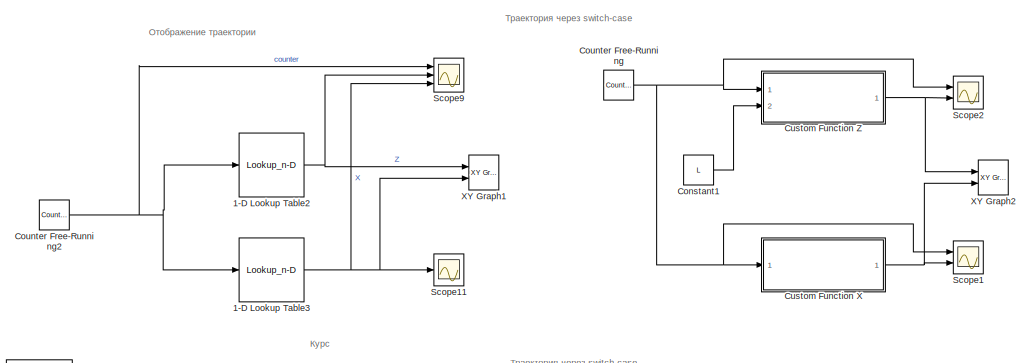
[diagram: root canvas - part 1/3, top right region]
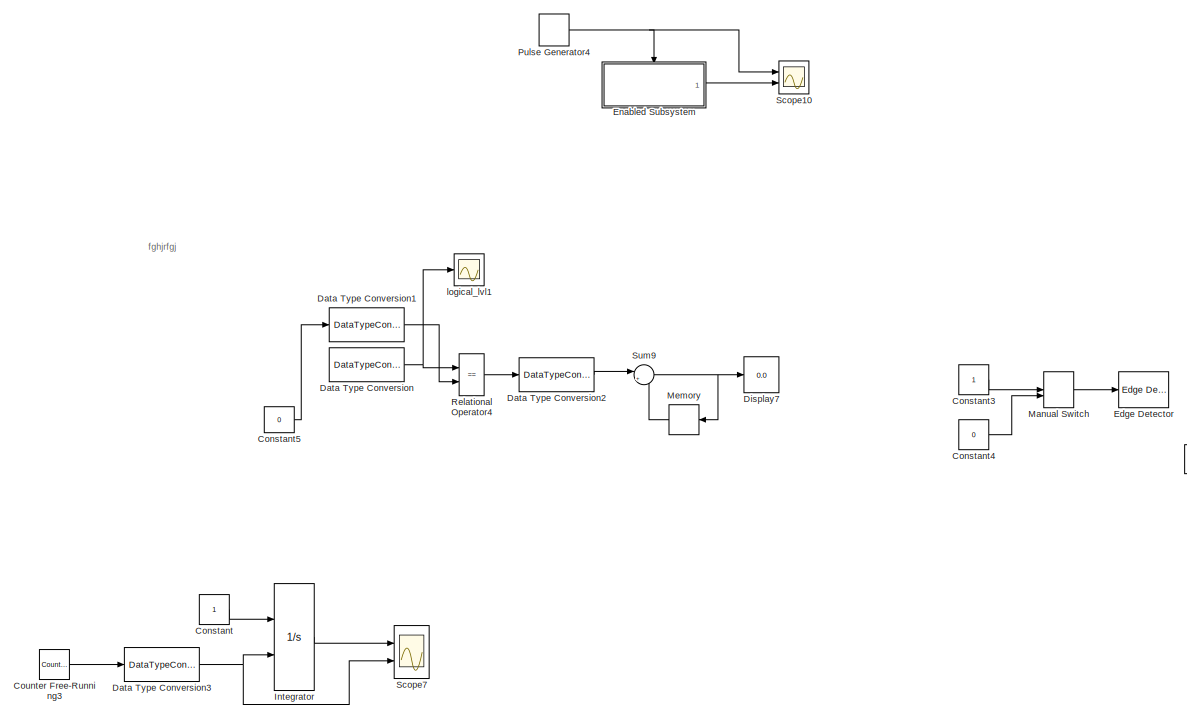
[diagram: root canvas - part 2/3, middle left region]
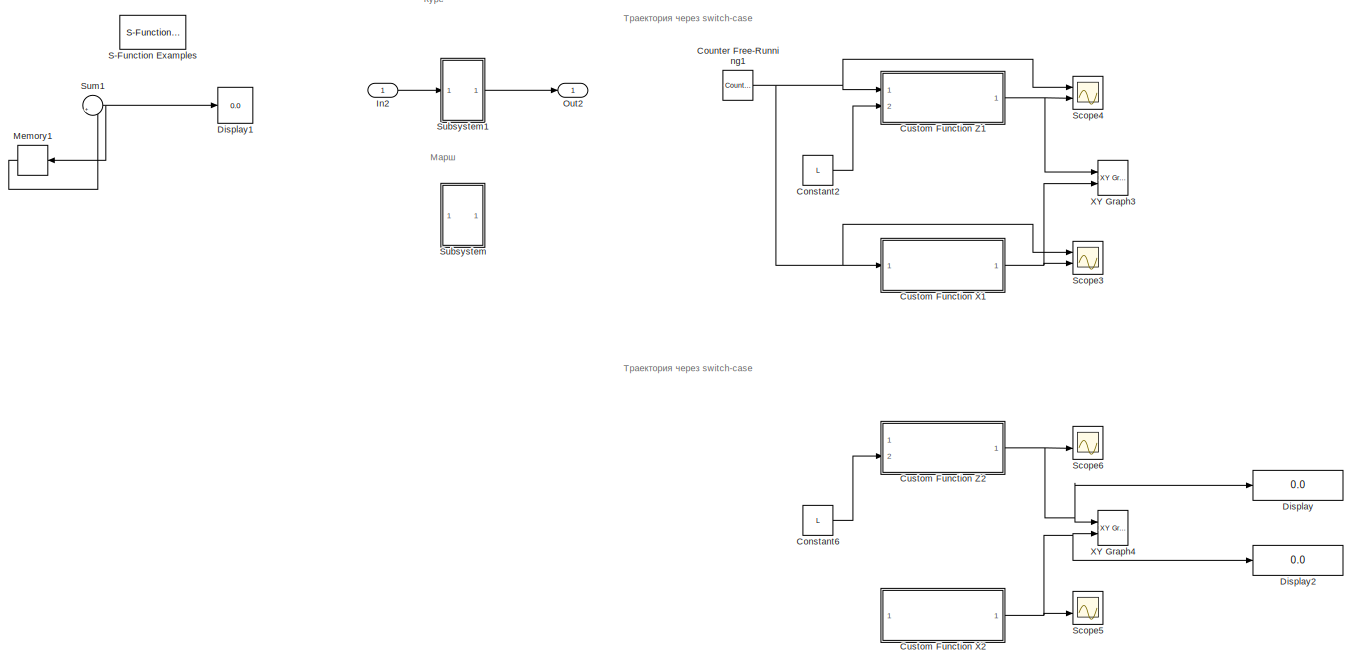
[diagram: root canvas - part 3/3, bottom right region]
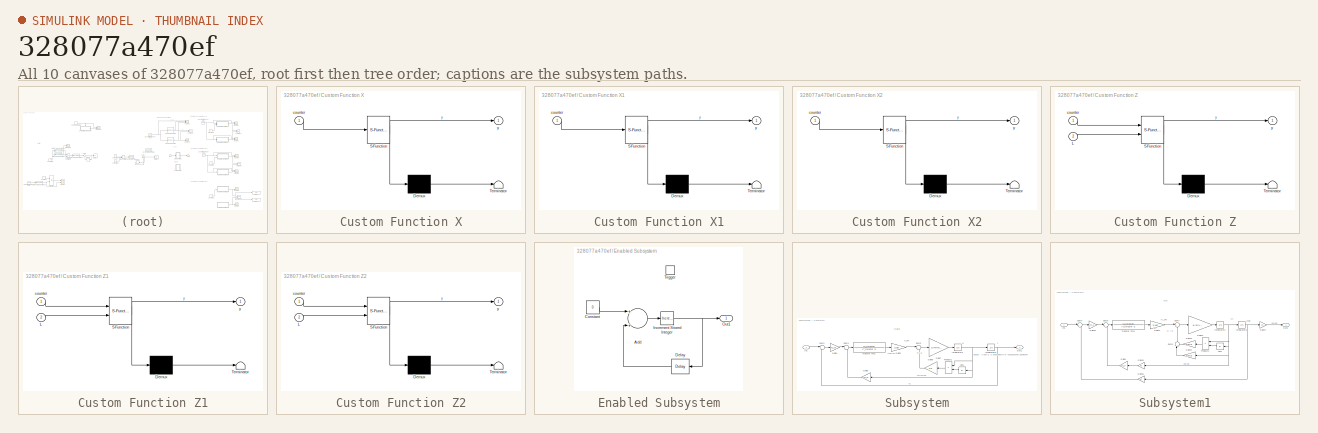
[diagram: thumbnail index - all 10 canvases of the model, root first then tree order]
MODEL slx_328077a470ef
KIND model
CONFIG AbsTol = auto
CONFIG EnableMultiTasking = off
CONFIG FixedStep = auto
CONFIG MaxStep = auto
CONFIG MinStep = auto
CONFIG RelTol = 1e-3
CONFIG SampleTimeConstraint = Unconstrained
CONFIG Solver = VariableStepAuto
CONFIG SolverName = VariableStepAuto
CONFIG StartTime = 0.0
CONFIG StopTime = 10.0
BLOCK [Lookup_n-D] 1-D Lookup Table2
  BreakpointsForDimension1 = [0:7]
  BreakpointsForDimension1DataTypeStr = uint8
  BreakpointsForDimension1FirstPoint = 0
  ExtrapMethod = Cubic spline
  InternalRulePriority = Speed
  InterpMethod = Flat
  NumberOfTableDimensions = 1
  OutDataTypeStr = double
  Ports = [1, 1]
  RemoveProtectionInput = on
  RndMeth = Zero
  Table = [0,0,L,L,2*L,2*L,3*L, 3*L]
  TableDataTypeStr = double
BLOCK [Lookup_n-D] 1-D Lookup Table3
  BreakpointsForDimension1 = [0:7]
  BreakpointsForDimension1DataTypeStr = int16
  InternalRulePriority = Speed
  InterpMethod = Flat
  NumberOfTableDimensions = 1
  OutDataTypeStr = double
  Ports = [1, 1]
  RemoveProtectionInput = on
  RndMeth = Zero
  Table = [0,25,25,0,0,25,25,0]
  TableDataTypeStr = double
BLOCK [Constant] Constant
BLOCK [Constant] Constant1
  Value = L
BLOCK [Constant] Constant2
  Value = L
BLOCK [Constant] Constant3
BLOCK [Constant] Constant4
  Value = 0
BLOCK [Constant] Constant5
  Value = 0
BLOCK [Constant] Constant6
  Value = L
BLOCK [Reference] Counter Free-Running  REF=simulink/Sources/Counter
Free-Running
  Ports = [0, 1]
  SourceBlock = simulink/Sources/Counter\nFree-Running
  SourceProductBaseCode = SL
  SourceProductName = Simulink
  SourceType = Counter Free-Running
BLOCK [Reference] Counter Free-Running1  REF=simulink/Sources/Counter
Free-Running
  Ports = [0, 1]
  SourceBlock = simulink/Sources/Counter\nFree-Running
  SourceProductBaseCode = SL
  SourceProductName = Simulink
  SourceType = Counter Free-Running
BLOCK [Reference] Counter Free-Running2  REF=simulink/Sources/Counter
Free-Running
  Ports = [0, 1]
  SourceBlock = simulink/Sources/Counter\nFree-Running
  SourceProductBaseCode = SL
  SourceProductName = Simulink
  SourceType = Counter Free-Running
BLOCK [Reference] Counter Free-Running3  REF=simulink/Sources/Counter
Free-Running
  Ports = [0, 1]
  SourceBlock = simulink/Sources/Counter\nFree-Running
  SourceProductBaseCode = SL
  SourceProductName = Simulink
  SourceType = Counter Free-Running
BLOCK [SubSystem] Custom Function X
  ErrorFcn = Stateflow.Translate.translate
  PermitHierarchicalResolution = ExplicitOnly
  Ports = [1, 1]
  RequestExecContextInheritance = off
  SFBlockType = MATLAB Function
  TreatAsAtomicUnit = on
  Variant = off
BLOCK [Demux] Custom Function X/ Demux 
  Outputs = 1
  Ports = [1, 1]
BLOCK [S-Function] Custom Function X/ SFunction 
  EnableBusSupport = on
  FunctionName = sf_sfun
  PortCounts = [1 2]
  Ports = [1, 2]
  SFcnIsStateOwnerBlock = off
  SFunctionDeploymentMode = off
  Tag = Stateflow S-Function test2 1
BLOCK [Terminator] Custom Function X/ Terminator 
BLOCK [Inport] Custom Function X/counter
  IconDisplay = Port number
BLOCK [Outport] Custom Function X/y
  IconDisplay = Port number
BLOCK [SubSystem] Custom Function X1
  ErrorFcn = Stateflow.Translate.translate
  PermitHierarchicalResolution = ExplicitOnly
  Ports = [1, 1]
  RequestExecContextInheritance = off
  SFBlockType = MATLAB Function
  TreatAsAtomicUnit = on
  Variant = off
BLOCK [Demux] Custom Function X1/ Demux 
  Outputs = 1
  Ports = [1, 1]
BLOCK [S-Function] Custom Function X1/ SFunction 
  EnableBusSupport = on
  FunctionName = sf_sfun
  PortCounts = [1 2]
  Ports = [1, 2]
  SFcnIsStateOwnerBlock = off
  SFunctionDeploymentMode = off
  Tag = Stateflow S-Function test2 3
BLOCK [Terminator] Custom Function X1/ Terminator 
BLOCK [Inport] Custom Function X1/counter
  IconDisplay = Port number
BLOCK [Outport] Custom Function X1/y
  IconDisplay = Port number
BLOCK [SubSystem] Custom Function X2
  ErrorFcn = Stateflow.Translate.translate
  PermitHierarchicalResolution = ExplicitOnly
  Ports = [1, 1]
  RequestExecContextInheritance = off
  SFBlockType = MATLAB Function
  TreatAsAtomicUnit = on
  Variant = off
BLOCK [Demux] Custom Function X2/ Demux 
  Outputs = 1
  Ports = [1, 1]
BLOCK [S-Function] Custom Function X2/ SFunction 
  EnableBusSupport = on
  FunctionName = sf_sfun
  PortCounts = [1 2]
  Ports = [1, 2]
  SFcnIsStateOwnerBlock = off
  SFunctionDeploymentMode = off
  Tag = Stateflow S-Function test2 5
BLOCK [Terminator] Custom Function X2/ Terminator 
BLOCK [Inport] Custom Function X2/counter
  IconDisplay = Port number
BLOCK [Outport] Custom Function X2/y
  IconDisplay = Port number
BLOCK [SubSystem] Custom Function Z
  ErrorFcn = Stateflow.Translate.translate
  PermitHierarchicalResolution = ExplicitOnly
  Ports = [2, 1]
  RequestExecContextInheritance = off
  SFBlockType = MATLAB Function
  TreatAsAtomicUnit = on
  Variant = off
BLOCK [Demux] Custom Function Z/ Demux 
  Outputs = 1
  Ports = [1, 1]
BLOCK [S-Function] Custom Function Z/ SFunction 
  EnableBusSupport = on
  FunctionName = sf_sfun
  PortCounts = [2 2]
  Ports = [2, 2]
  SFcnIsStateOwnerBlock = off
  SFunctionDeploymentMode = off
  Tag = Stateflow S-Function test2 2
BLOCK [Terminator] Custom Function Z/ Terminator 
BLOCK [Inport] Custom Function Z/L
  IconDisplay = Port number
  Port = 2
BLOCK [Inport] Custom Function Z/counter
  IconDisplay = Port number
BLOCK [Outport] Custom Function Z/y
  IconDisplay = Port number
BLOCK [SubSystem] Custom Function Z1
  ErrorFcn = Stateflow.Translate.translate
  PermitHierarchicalResolution = ExplicitOnly
  Ports = [2, 1]
  RequestExecContextInheritance = off
  SFBlockType = MATLAB Function
  TreatAsAtomicUnit = on
  Variant = off
BLOCK [Demux] Custom Function Z1/ Demux 
  Outputs = 1
  Ports = [1, 1]
BLOCK [S-Function] Custom Function Z1/ SFunction 
  EnableBusSupport = on
  FunctionName = sf_sfun
  PortCounts = [2 2]
  Ports = [2, 2]
  SFcnIsStateOwnerBlock = off
  SFunctionDeploymentMode = off
  Tag = Stateflow S-Function test2 4
BLOCK [Terminator] Custom Function Z1/ Terminator 
BLOCK [Inport] Custom Function Z1/L
  IconDisplay = Port number
  Port = 2
BLOCK [Inport] Custom Function Z1/counter
  IconDisplay = Port number
BLOCK [Outport] Custom Function Z1/y
  IconDisplay = Port number
BLOCK [SubSystem] Custom Function Z2
  ErrorFcn = Stateflow.Translate.translate
  PermitHierarchicalResolution = ExplicitOnly
  Ports = [2, 1]
  RequestExecContextInheritance = off
  SFBlockType = MATLAB Function
  TreatAsAtomicUnit = on
  Variant = off
BLOCK [Demux] Custom Function Z2/ Demux 
  Outputs = 1
  Ports = [1, 1]
BLOCK [S-Function] Custom Function Z2/ SFunction 
  EnableBusSupport = on
  FunctionName = sf_sfun
  PortCounts = [2 2]
  Ports = [2, 2]
  SFcnIsStateOwnerBlock = off
  SFunctionDeploymentMode = off
  Tag = Stateflow S-Function test2 6
BLOCK [Terminator] Custom Function Z2/ Terminator 
BLOCK [Inport] Custom Function Z2/L
  IconDisplay = Port number
  Port = 2
BLOCK [Inport] Custom Function Z2/counter
  IconDisplay = Port number
BLOCK [Outport] Custom Function Z2/y
  IconDisplay = Port number
BLOCK [DataTypeConversion] Data Type Conversion
  OutDataTypeStr = uint8
  RndMeth = Floor
  SaturateOnIntegerOverflow = off
BLOCK [DataTypeConversion] Data Type Conversion1
  OutDataTypeStr = uint8
  RndMeth = Floor
  SaturateOnIntegerOverflow = off
BLOCK [DataTypeConversion] Data Type Conversion2
  OutDataTypeStr = uint8
  RndMeth = Floor
  SaturateOnIntegerOverflow = off
BLOCK [DataTypeConversion] Data Type Conversion3
  RndMeth = Floor
  SaturateOnIntegerOverflow = off
BLOCK [Display] Display
  Decimation = 1
  Ports = [1]
BLOCK [Display] Display1
  Decimation = 1
  Ports = [1]
BLOCK [Display] Display2
  Decimation = 1
  Ports = [1]
BLOCK [Display] Display7
  Decimation = 1
  Ports = [1]
BLOCK [Reference] Edge Detector  REF=powerlib_meascontrol/Logic/Edge Detector
  Ports = [1, 1]
  SourceBlock = powerlib_meascontrol/Logic/Edge Detector
  SourceProductBaseCode = PS
  SourceProductName = Simscape Power Systems
  SourceType = Edge Detector
BLOCK [SubSystem] Enabled Subsystem
  Ports = [0, 1, 0, 1]
  RequestExecContextInheritance = off
  TreatAsAtomicUnit = on
  Variant = off
BLOCK [Sum] Enabled Subsystem/Add
  InputSameDT = off
  OutDataTypeStr = Inherit: Inherit via internal rule
  Ports = [2, 1]
  SaturateOnIntegerOverflow = off
BLOCK [Constant] Enabled Subsystem/Constant
  Value = 0
BLOCK [Delay] Enabled Subsystem/Delay
  DelayLength = 1
  InitialCondition = 0
  InputPortMap = u0
  Ports = [1, 1]
BLOCK [Reference] Enabled Subsystem/Increment Stored Integer  REF=simulink/Additional Math
& Discrete/Additional Math:
Increment - Decrement/Increment
Stored Integer
  Ports = [1, 1]
  SourceBlock = simulink/Additional Math\n& Discrete/Additional Math:\nIncrement - Decrement/Increment\nStored Integer
  SourceProductBaseCode = SL
  SourceProductName = Simulink
  SourceType = Stored Integer Value Increment
BLOCK [Outport] Enabled Subsystem/Out1
  IconDisplay = Port number
BLOCK [TriggerPort] Enabled Subsystem/Trigger
  PortDimensions = 1
  Ports = []
  StatesWhenEnabling = held
  TriggerType = falling
  VariantControl = Variant
BLOCK [Inport] In2
  IconDisplay = Port number
BLOCK [Integrator] Integrator
  ExternalReset = rising
  Ports = [2, 1]
BLOCK [ManualSwitch] Manual Switch
BLOCK [Memory] Memory
BLOCK [Memory] Memory1
BLOCK [Outport] Out2
  IconDisplay = Port number
BLOCK [DiscretePulseGenerator] Pulse Generator4
  Ports = [0, 1]
  PulseType = Time based
  PulseWidth = 50
BLOCK [RelationalOperator] Relational Operator4
  InputSameDT = off
  Operator = ==
  OutDataTypeStr = boolean
  Ports = [2, 1]
  RndMeth = Simplest
BLOCK [Reference] S-Function Examples  REF=simulink/User-Defined
Functions/S-Function Examples
  Ports = []
  SourceBlock = simulink/User-Defined\nFunctions/S-Function Examples
  SourceProductBaseCode = SL
  SourceProductName = Simulink
  SourceType = S-Function Examples
BLOCK [Scope] Scope1
  NumInputPorts = 2
  Ports = [2]
  ScopeSpecificationString = Simulink.scopes.TimeScopeBlockCfg('CurrentConfiguration', extmgr.ConfigurationSet(extmgr.Configuration('Core','General UI',true),extmgr.Configuration('Core','Source UI',true),extmgr.Configuration('Sources','WiredSimulink',true,'DataLoggingVariableName','ScopeData1'),extmgr.Configuration('Visuals','Time Domain',true,'SerializedDisplays',{struct('MinYLimReal','-3.125','MaxYLimReal','28.125','YLabelR...<+1445ch>
BLOCK [Scope] Scope10
  NumInputPorts = 2
  Ports = [2]
  ScopeSpecificationString = Simulink.scopes.TimeScopeBlockCfg('CurrentConfiguration', extmgr.ConfigurationSet(extmgr.Configuration('Core','General UI',true),extmgr.Configuration('Core','Source UI',true),extmgr.Configuration('Sources','WiredSimulink',true,'DataLoggingVariableName','ScopeData2'),extmgr.Configuration('Visuals','Time Domain',true,'SerializedDisplays',{struct('MinYLimReal','-1.25','MaxYLimReal','11.25','YLabelRea...<+1436ch>
BLOCK [Scope] Scope11
  NumInputPorts = 1
  Ports = [1]
  ScopeSpecificationString = Simulink.scopes.TimeScopeBlockCfg('CurrentConfiguration', extmgr.ConfigurationSet(extmgr.Configuration('Core','General UI',true),extmgr.Configuration('Core','Source UI',true),extmgr.Configuration('Sources','WiredSimulink',true,'DataLoggingVariableName','ScopeData1'),extmgr.Configuration('Visuals','Time Domain',true,'SerializedDisplays',{struct('MinYLimReal','-3.125','MaxYLimReal','28.125','YLabelR...<+1397ch>
BLOCK [Scope] Scope2
  NumInputPorts = 2
  Ports = [2]
  ScopeSpecificationString = Simulink.scopes.TimeScopeBlockCfg('CurrentConfiguration', extmgr.ConfigurationSet(extmgr.Configuration('Core','General UI',true),extmgr.Configuration('Core','Source UI',true),extmgr.Configuration('Sources','WiredSimulink',true,'DataLoggingVariableName','ScopeData2'),extmgr.Configuration('Visuals','Time Domain',true,'SerializedDisplays',{struct('MinYLimReal','-1.25','MaxYLimReal','11.25','YLabelRea...<+1438ch>
BLOCK [Scope] Scope3
  NumInputPorts = 2
  Ports = [2]
  ScopeSpecificationString = Simulink.scopes.TimeScopeBlockCfg('CurrentConfiguration', extmgr.ConfigurationSet(extmgr.Configuration('Core','General UI',true),extmgr.Configuration('Core','Source UI',true),extmgr.Configuration('Sources','WiredSimulink',true,'DataLoggingVariableName','ScopeData1'),extmgr.Configuration('Visuals','Time Domain',true,'SerializedDisplays',{struct('MinYLimReal','-3.125','MaxYLimReal','28.125','YLabelR...<+1445ch>
BLOCK [Scope] Scope4
  NumInputPorts = 2
  Ports = [2]
  ScopeSpecificationString = Simulink.scopes.TimeScopeBlockCfg('CurrentConfiguration', extmgr.ConfigurationSet(extmgr.Configuration('Core','General UI',true),extmgr.Configuration('Core','Source UI',true),extmgr.Configuration('Sources','WiredSimulink',true,'DataLoggingVariableName','ScopeData2'),extmgr.Configuration('Visuals','Time Domain',true,'SerializedDisplays',{struct('MinYLimReal','-1.25','MaxYLimReal','11.25','YLabelRea...<+1438ch>
BLOCK [Scope] Scope5
  NumInputPorts = 2
  Ports = [2]
  ScopeSpecificationString = Simulink.scopes.TimeScopeBlockCfg('CurrentConfiguration', extmgr.ConfigurationSet(extmgr.Configuration('Core','General UI',true),extmgr.Configuration('Core','Source UI',true),extmgr.Configuration('Sources','WiredSimulink',true,'DataLoggingVariableName','ScopeData3'),extmgr.Configuration('Visuals','Time Domain',true,'SerializedDisplays',{struct('MinYLimReal','-3.125','MaxYLimReal','28.125','YLabelR...<+1445ch>
BLOCK [Scope] Scope6
  NumInputPorts = 2
  Ports = [2]
  ScopeSpecificationString = Simulink.scopes.TimeScopeBlockCfg('CurrentConfiguration', extmgr.ConfigurationSet(extmgr.Configuration('Core','General UI',true),extmgr.Configuration('Core','Source UI',true),extmgr.Configuration('Sources','WiredSimulink',true,'DataLoggingVariableName','ScopeData4'),extmgr.Configuration('Visuals','Time Domain',true,'SerializedDisplays',{struct('MinYLimReal','-1.25','MaxYLimReal','11.25','YLabelRea...<+1438ch>
BLOCK [Scope] Scope7
  NumInputPorts = 2
  Ports = [2]
  ScopeSpecificationString = Simulink.scopes.TimeScopeBlockCfg('CurrentConfiguration', extmgr.ConfigurationSet(extmgr.Configuration('Core','General UI',true),extmgr.Configuration('Core','Source UI',true),extmgr.Configuration('Sources','WiredSimulink',true,'DataLoggingVariableName','ScopeData1'),extmgr.Configuration('Visuals','Time Domain',true,'SerializedDisplays',{struct('MinYLimReal','-0.975','MaxYLimReal','8.775','YLabelRe...<+1411ch>
BLOCK [Scope] Scope9
  NumInputPorts = 3
  Ports = [3]
  ScopeSpecificationString = Simulink.scopes.TimeScopeBlockCfg('CurrentConfiguration', extmgr.ConfigurationSet(extmgr.Configuration('Core','General UI',true),extmgr.Configuration('Core','Source UI',true),extmgr.Configuration('Sources','WiredSimulink',true,'DataLoggingVariableName','ScopeData2'),extmgr.Configuration('Visuals','Time Domain',true,'SerializedDisplays',{struct('MinYLimReal','-3.125','MaxYLimReal','28.125','YLabelR...<+1492ch>
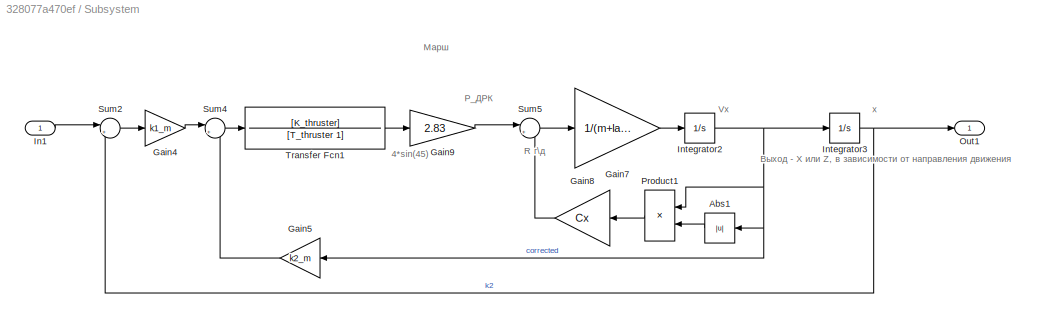
BLOCK [SubSystem] Subsystem
  Ports = [1, 1]
  RequestExecContextInheritance = off
  Variant = off
BLOCK [Abs] Subsystem/Abs1
  SaturateOnIntegerOverflow = off
BLOCK [Gain] Subsystem/Gain4
  Gain = k1_m
  OutDataTypeStr = Inherit: Inherit via internal rule
  ParamDataTypeStr = Inherit: Inherit via internal rule
  SaturateOnIntegerOverflow = off
BLOCK [Gain] Subsystem/Gain5
  Gain = k2_m
  OutDataTypeStr = Inherit: Inherit via internal rule
  ParamDataTypeStr = Inherit: Inherit via internal rule
  SaturateOnIntegerOverflow = off
BLOCK [Gain] Subsystem/Gain7
  Gain = 1/(m+lambda11)
  OutDataTypeStr = Inherit: Inherit via internal rule
  ParamDataTypeStr = Inherit: Inherit via internal rule
  SaturateOnIntegerOverflow = off
BLOCK [Gain] Subsystem/Gain8
  Gain = Cx
  OutDataTypeStr = Inherit: Inherit via internal rule
  ParamDataTypeStr = Inherit: Inherit via internal rule
  SaturateOnIntegerOverflow = off
BLOCK [Gain] Subsystem/Gain9
  Gain = 2.83
  OutDataTypeStr = Inherit: Inherit via internal rule
  ParamDataTypeStr = Inherit: Inherit via internal rule
  SaturateOnIntegerOverflow = off
BLOCK [Inport] Subsystem/In1
  IconDisplay = Port number
BLOCK [Integrator] Subsystem/Integrator2
  Ports = [1, 1]
BLOCK [Integrator] Subsystem/Integrator3
  Ports = [1, 1]
BLOCK [Outport] Subsystem/Out1
  IconDisplay = Port number
BLOCK [Product] Subsystem/Product1
  InputSameDT = off
  OutDataTypeStr = Inherit: Inherit via internal rule
  Ports = [2, 1]
  RndMeth = Floor
  SaturateOnIntegerOverflow = off
BLOCK [Sum] Subsystem/Sum2
  IconShape = round
  InputSameDT = off
  Inputs = |+-
  OutDataTypeStr = Inherit: Inherit via internal rule
  Ports = [2, 1]
  SaturateOnIntegerOverflow = off
BLOCK [Sum] Subsystem/Sum4
  IconShape = round
  InputSameDT = off
  Inputs = |+-
  OutDataTypeStr = Inherit: Inherit via internal rule
  Ports = [2, 1]
  SaturateOnIntegerOverflow = off
BLOCK [Sum] Subsystem/Sum5
  IconShape = round
  InputSameDT = off
  Inputs = |+-
  OutDataTypeStr = Inherit: Inherit via internal rule
  Ports = [2, 1]
  SaturateOnIntegerOverflow = off
BLOCK [TransferFcn] Subsystem/Transfer Fcn1
  Denominator = [T_thruster 1]
  Numerator = [K_thruster]
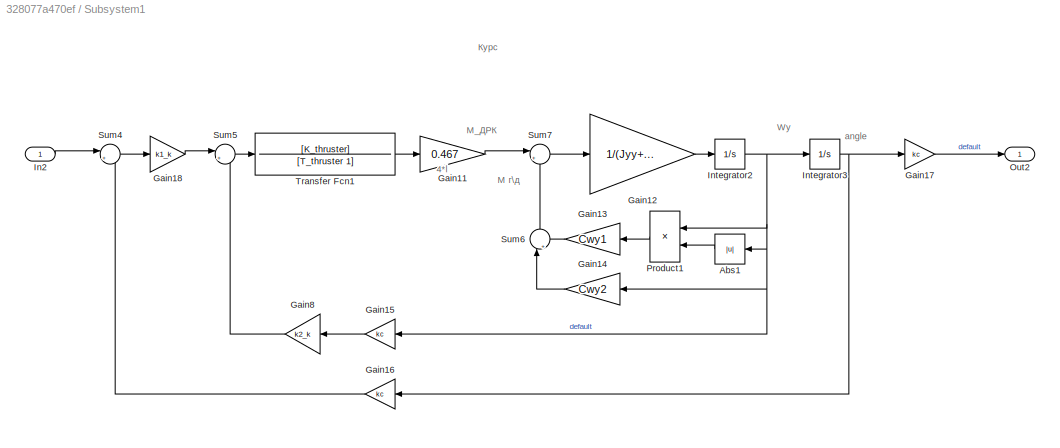
BLOCK [SubSystem] Subsystem1
  Ports = [1, 1]
  RequestExecContextInheritance = off
  Variant = off
BLOCK [Abs] Subsystem1/Abs1
  SaturateOnIntegerOverflow = off
BLOCK [Gain] Subsystem1/Gain11
  Gain = 0.467
  OutDataTypeStr = Inherit: Inherit via internal rule
  ParamDataTypeStr = Inherit: Inherit via internal rule
  SaturateOnIntegerOverflow = off
BLOCK [Gain] Subsystem1/Gain12
  Gain = 1/(Jyy+lambda55)
  OutDataTypeStr = Inherit: Inherit via internal rule
  ParamDataTypeStr = Inherit: Inherit via internal rule
  SaturateOnIntegerOverflow = off
BLOCK [Gain] Subsystem1/Gain13
  Gain = Cwy1
  OutDataTypeStr = Inherit: Inherit via internal rule
  ParamDataTypeStr = Inherit: Inherit via internal rule
  SaturateOnIntegerOverflow = off
BLOCK [Gain] Subsystem1/Gain14
  Gain = Cwy2
  OutDataTypeStr = Inherit: Inherit via internal rule
  ParamDataTypeStr = Inherit: Inherit via internal rule
  SaturateOnIntegerOverflow = off
BLOCK [Gain] Subsystem1/Gain15
  Gain = kc
  OutDataTypeStr = Inherit: Inherit via internal rule
  ParamDataTypeStr = Inherit: Inherit via internal rule
  SaturateOnIntegerOverflow = off
BLOCK [Gain] Subsystem1/Gain16
  Gain = kc
  OutDataTypeStr = Inherit: Inherit via internal rule
  ParamDataTypeStr = Inherit: Inherit via internal rule
  SaturateOnIntegerOverflow = off
BLOCK [Gain] Subsystem1/Gain17
  Gain = kc
  OutDataTypeStr = Inherit: Inherit via internal rule
  ParamDataTypeStr = Inherit: Inherit via internal rule
  SaturateOnIntegerOverflow = off
BLOCK [Gain] Subsystem1/Gain18
  Gain = k1_k
  OutDataTypeStr = Inherit: Inherit via internal rule
  ParamDataTypeStr = Inherit: Inherit via internal rule
  SaturateOnIntegerOverflow = off
BLOCK [Gain] Subsystem1/Gain8
  Gain = k2_k
  OutDataTypeStr = Inherit: Inherit via internal rule
  ParamDataTypeStr = Inherit: Inherit via internal rule
  SaturateOnIntegerOverflow = off
BLOCK [Inport] Subsystem1/In2
  IconDisplay = Port number
BLOCK [Integrator] Subsystem1/Integrator2
  Ports = [1, 1]
BLOCK [Integrator] Subsystem1/Integrator3
  Ports = [1, 1]
BLOCK [Outport] Subsystem1/Out2
  IconDisplay = Port number
BLOCK [Product] Subsystem1/Product1
  InputSameDT = off
  OutDataTypeStr = Inherit: Inherit via internal rule
  Ports = [2, 1]
  RndMeth = Floor
  SaturateOnIntegerOverflow = off
BLOCK [Sum] Subsystem1/Sum4
  IconShape = round
  InputSameDT = off
  Inputs = |+-
  OutDataTypeStr = Inherit: Inherit via internal rule
  Ports = [2, 1]
  SaturateOnIntegerOverflow = off
BLOCK [Sum] Subsystem1/Sum5
  IconShape = round
  InputSameDT = off
  Inputs = |+-
  OutDataTypeStr = Inherit: Inherit via internal rule
  Ports = [2, 1]
  SaturateOnIntegerOverflow = off
BLOCK [Sum] Subsystem1/Sum6
  IconShape = round
  InputSameDT = off
  Inputs = |++
  OutDataTypeStr = Inherit: Inherit via internal rule
  Ports = [2, 1]
  SaturateOnIntegerOverflow = off
BLOCK [Sum] Subsystem1/Sum7
  IconShape = round
  InputSameDT = off
  Inputs = |+-
  OutDataTypeStr = Inherit: Inherit via internal rule
  Ports = [2, 1]
  SaturateOnIntegerOverflow = off
BLOCK [TransferFcn] Subsystem1/Transfer Fcn1
  Denominator = [T_thruster 1]
  Numerator = [K_thruster]
BLOCK [Sum] Sum1
  IconShape = round
  InputSameDT = off
  Inputs = |++
  OutDataTypeStr = Inherit: Inherit via internal rule
  Ports = [2, 1]
  SaturateOnIntegerOverflow = off
BLOCK [Sum] Sum9
  IconShape = round
  InputSameDT = off
  Inputs = |++
  OutDataTypeStr = Inherit: Inherit via internal rule
  Ports = [2, 1]
  SaturateOnIntegerOverflow = off
BLOCK [Reference] XY Graph1  REF=simulink/Sinks/XY Graph
  Ports = [2]
  SourceBlock = simulink/Sinks/XY Graph
  SourceProductBaseCode = SL
  SourceProductName = Simulink
  SourceType = XY scope.
BLOCK [Reference] XY Graph2  REF=simulink/Sinks/XY Graph
  Ports = [2]
  SourceBlock = simulink/Sinks/XY Graph
  SourceProductBaseCode = SL
  SourceProductName = Simulink
  SourceType = XY scope.
BLOCK [Reference] XY Graph3  REF=simulink/Sinks/XY Graph
  Ports = [2]
  SourceBlock = simulink/Sinks/XY Graph
  SourceProductBaseCode = SL
  SourceProductName = Simulink
  SourceType = XY scope.
BLOCK [Reference] XY Graph4  REF=simulink/Sinks/XY Graph
  Ports = [2]
  SourceBlock = simulink/Sinks/XY Graph
  SourceProductBaseCode = SL
  SourceProductName = Simulink
  SourceType = XY scope.
BLOCK [Scope] logical_lvl1
  NumInputPorts = 1
  Ports = [1]
  ScopeSpecificationString = Simulink.scopes.TimeScopeBlockCfg('CurrentConfiguration', extmgr.ConfigurationSet(extmgr.Configuration('Core','General UI',true),extmgr.Configuration('Core','Source UI',true),extmgr.Configuration('Sources','WiredSimulink',true,'DataLoggingVariableName','ScopeData1'),extmgr.Configuration('Visuals','Time Domain',true,'SerializedDisplays',{struct('MinYLimReal','-0.125','MaxYLimReal','1.125','YLabelRe...<+1396ch>
ANNOTATION (root): Марш
ANNOTATION (root): Курс
ANNOTATION (root): fghjrfgj
ANNOTATION (root): Отображение траектории
ANNOTATION (root): Траектория через switch-case
ANNOTATION Subsystem: 4*sin(45)
ANNOTATION Subsystem: Марш
ANNOTATION Subsystem: P_ДРК
ANNOTATION Subsystem: R г\д
ANNOTATION Subsystem: Vx
ANNOTATION Subsystem: x
ANNOTATION Subsystem: Выход - X или Z, в зависимости от направления движения
ANNOTATION Subsystem1: 4*l
ANNOTATION Subsystem1: Курс
ANNOTATION Subsystem1: M г\д
ANNOTATION Subsystem1: M_ДРК
ANNOTATION Subsystem1: Wy
ANNOTATION Subsystem1: angle
NET 1-D Lookup Table2:1 -> Scope9:2, XY Graph1:1
NET 1-D Lookup Table3:1 -> Scope11:1, Scope9:3, XY Graph1:2
LINE Constant1:1 -> Custom Function Z:2
LINE Constant2:1 -> Custom Function Z1:2
LINE Constant3:1 -> Manual Switch:1
LINE Constant4:1 -> Manual Switch:2
LINE Constant5:1 -> Data Type Conversion1:1
LINE Constant6:1 -> Custom Function Z2:2
LINE Constant:1 -> Integrator:1
NET Counter Free-Running1:1 -> Custom Function X1:1, Custom Function Z1:1, Scope3:1, Scope4:1
NET Counter Free-Running2:1 -> 1-D Lookup Table2:1, 1-D Lookup Table3:1, Scope9:1
LINE Counter Free-Running3:1 -> Data Type Conversion3:1
NET Counter Free-Running:1 -> Custom Function X:1, Custom Function Z:1, Scope1:1, Scope2:1
NET Custom Function X1:1 -> Scope3:2, XY Graph3:2
NET Custom Function X2:1 -> Display2:1, Scope5:2, XY Graph4:2
NET Custom Function X:1 -> Scope1:2, XY Graph2:2
NET Custom Function Z1:1 -> Scope4:2, XY Graph3:1
NET Custom Function Z2:1 -> Display:1, Scope6:2, XY Graph4:1
NET Custom Function Z:1 -> Scope2:2, XY Graph2:1
LINE Data Type Conversion1:1 -> Relational Operator4:2
LINE Data Type Conversion2:1 -> Sum9:1
NET Data Type Conversion3:1 -> Integrator:2, Scope7:2
NET Data Type Conversion:1 -> Relational Operator4:1, logical_lvl1:1
LINE Enabled Subsystem/Add:1 -> Enabled Subsystem/Increment Stored Integer:1
LINE Enabled Subsystem/Constant:1 -> Enabled Subsystem/Add:1
LINE Enabled Subsystem/Delay:1 -> Enabled Subsystem/Add:2
NET Enabled Subsystem/Increment Stored Integer:1 -> Enabled Subsystem/Delay:1, Enabled Subsystem/Out1:1
LINE Enabled Subsystem:1 -> Scope10:2
LINE In2:1 -> Subsystem1:1
LINE Integrator:1 -> Scope7:1
LINE Manual Switch:1 -> Edge Detector:1
LINE Memory1:1 -> Sum1:2
LINE Memory:1 -> Sum9:2
NET Pulse Generator4:1 -> Enabled Subsystem:trigger, Scope10:1
LINE Relational Operator4:1 -> Data Type Conversion2:1
LINE Subsystem/Abs1:1 -> Subsystem/Product1:2
LINE Subsystem/Gain4:1 -> Subsystem/Sum4:1
LINE Subsystem/Gain5:1 -> Subsystem/Sum4:2
LINE Subsystem/Gain7:1 -> Subsystem/Integrator2:1
LINE Subsystem/Gain8:1 -> Subsystem/Sum5:2
LINE Subsystem/Gain9:1 -> Subsystem/Sum5:1
LINE Subsystem/In1:1 -> Subsystem/Sum2:1
NET Subsystem/Integrator2:1 -> Subsystem/Abs1:1, Subsystem/Gain5:1, Subsystem/Integrator3:1, Subsystem/Product1:1
NET Subsystem/Integrator3:1 -> Subsystem/Out1:1, Subsystem/Sum2:2
LINE Subsystem/Product1:1 -> Subsystem/Gain8:1
LINE Subsystem/Sum2:1 -> Subsystem/Gain4:1
LINE Subsystem/Sum4:1 -> Subsystem/Transfer Fcn1:1
LINE Subsystem/Sum5:1 -> Subsystem/Gain7:1
LINE Subsystem/Transfer Fcn1:1 -> Subsystem/Gain9:1
LINE Subsystem1/Abs1:1 -> Subsystem1/Product1:2
LINE Subsystem1/Gain11:1 -> Subsystem1/Sum7:1
LINE Subsystem1/Gain12:1 -> Subsystem1/Integrator2:1
LINE Subsystem1/Gain13:1 -> Subsystem1/Sum6:2
LINE Subsystem1/Gain14:1 -> Subsystem1/Sum6:1
LINE Subsystem1/Gain15:1 -> Subsystem1/Gain8:1
LINE Subsystem1/Gain16:1 -> Subsystem1/Sum4:2
LINE Subsystem1/Gain17:1 -> Subsystem1/Out2:1
LINE Subsystem1/Gain18:1 -> Subsystem1/Sum5:1
LINE Subsystem1/Gain8:1 -> Subsystem1/Sum5:2
LINE Subsystem1/In2:1 -> Subsystem1/Sum4:1
NET Subsystem1/Integrator2:1 -> Subsystem1/Abs1:1, Subsystem1/Gain14:1, Subsystem1/Gain15:1, Subsystem1/Integrator3:1, Subsystem1/Product1:1
NET Subsystem1/Integrator3:1 -> Subsystem1/Gain16:1, Subsystem1/Gain17:1
LINE Subsystem1/Product1:1 -> Subsystem1/Gain13:1
LINE Subsystem1/Sum4:1 -> Subsystem1/Gain18:1
LINE Subsystem1/Sum5:1 -> Subsystem1/Transfer Fcn1:1
LINE Subsystem1/Sum6:1 -> Subsystem1/Sum7:2
LINE Subsystem1/Sum7:1 -> Subsystem1/Gain12:1
LINE Subsystem1/Transfer Fcn1:1 -> Subsystem1/Gain11:1
LINE Subsystem1:1 -> Out2:1
NET Sum1:1 -> Display1:1, Memory1:1
NET Sum9:1 -> Display7:1, Memory:1
note: NET lines group one-source signal fan-out (src -> all destinations, sorted); 1:1 wires keep LINE
CHART Custom Function X states=1 transitions=1
  STATE_LABEL 'eML_blk_kernel()'
  STATE_LABEL 'SCRIPT:\nfunction y = fcn(counter)\n\n%L = 1.76;\n\nswitch counter\n    case 1\n      y = 0;\n    case 2\n      y = 25;\n    case 3\n      y = 25;\n    case 4\n      y = 0;\n    case 5\n      y = 0;\n    case 6\n      y = 25;\n    case 7\n      y = 25;\n    case 8\n      y = 0;\n    case 9\n      y = 0;\n    case 10\n      y = 25;      \n   otherwise\n      y = 0;\nend'
CHART Custom Function Z states=1 transitions=1
  STATE_LABEL 'eML_blk_kernel()'
  STATE_LABEL 'SCRIPT:\nfunction y = fcn(counter, L)\n\n%L = 1.76;\n\nswitch counter\n    case 1\n      y = 0;\n    case 2\n      y = 0;\n    case 3\n      y = L;\n    case 4\n      y = L;\n    case 5\n      y = 2*L;\n    case 6\n      y = 2*L;\n    case 7\n      y = 3*L;\n    case 8\n      y = 3*L;\n    case 9\n      y = 4*L;\n    case 10\n      y = 4*L;      \n   otherwise\n      y = 0;\nend'
CHART Custom Function X1 states=1 transitions=1
  STATE_LABEL 'eML_blk_kernel()'
  STATE_LABEL 'SCRIPT:\nfunction y = fcn(counter)\n\n%L = 1.76;\n\nswitch counter\n    case 1\n      y = 25;\n    case 2\n      y = 25;\n    case 3\n      y = 0;\n    case 4\n      y = 0;\n    case 5\n      y = 25;\n    case 6\n      y = 25;\n    case 7\n      y = 0;\n    case 8\n      y = 0;\n    case 9\n      y = 25;    \n    case 10\n      y = 25;\n   otherwise\n      y = 25;\nend'
CHART Custom Function Z1 states=1 transitions=1
  STATE_LABEL 'eML_blk_kernel()'
  STATE_LABEL 'SCRIPT:\nfunction y = fcn(counter, L)\n\n%L = 1.76;\n\nswitch counter\n    case 1\n      y = 0;\n    case 2\n      y = L;\n    case 3\n      y = L;\n    case 4\n      y = 2*L;\n    case 5\n      y = 2*L;\n    case 6\n      y = 3*L;\n    case 7\n      y = 3*L;\n    case 8\n      y = 4*L;\n    case 9\n      y = 4*L;      \n    case 10\n      y = 5*L;      \n   otherwise\n      y = 0;\nend'
CHART Custom Function X2 states=1 transitions=1
  STATE_LABEL 'eML_blk_kernel()'
  STATE_LABEL 'SCRIPT:\nfunction y = fcn(counter)\n\n%L = 1.76;\n\nswitch counter\n    case 1\n      y = 25;\n    case 2\n      y = 25;\n    case 3\n      y = 0;\n    case 4\n      y = 0;\n    case 5\n      y = 25;\n    case 6\n      y = 25;\n    case 7\n      y = 0;\n    case 8\n      y = 0;\n    case 9\n      y = 25;    \n    case 10\n      y = 25;\n   otherwise\n      y = 25;\nend'
CHART Custom Function Z2 states=1 transitions=1
  STATE_LABEL 'eML_blk_kernel()'
  STATE_LABEL 'SCRIPT:\nfunction y = fcn(counter, L)\n\n%L = 1.76;\n\nswitch counter\n    case 1\n      y = 0;\n    case 2\n      y = L;\n    case 3\n      y = L;\n    case 4\n      y = 2*L;\n    case 5\n      y = 2*L;\n    case 6\n      y = 3*L;\n    case 7\n      y = 3*L;\n    case 8\n      y = 4*L;\n    case 9\n      y = 4*L;      \n    case 10\n      y = 5*L;      \n   otherwise\n      y = 0;\nend'
